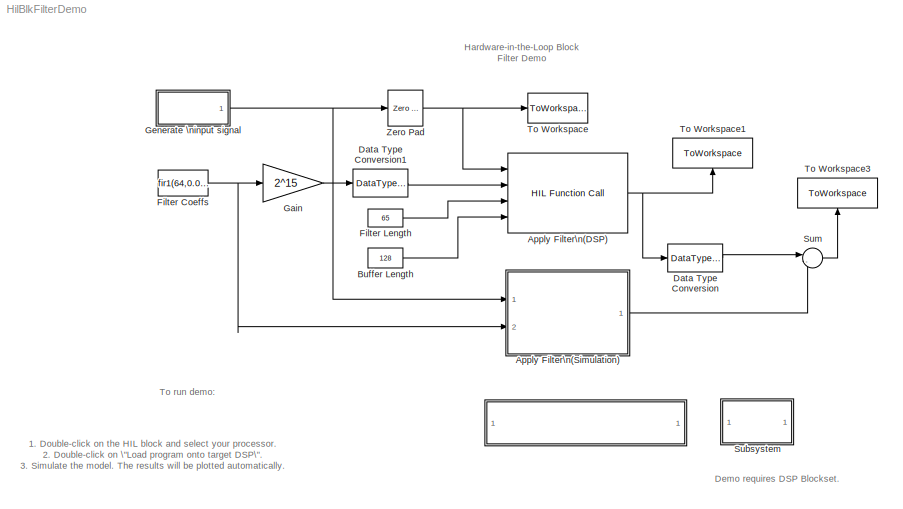
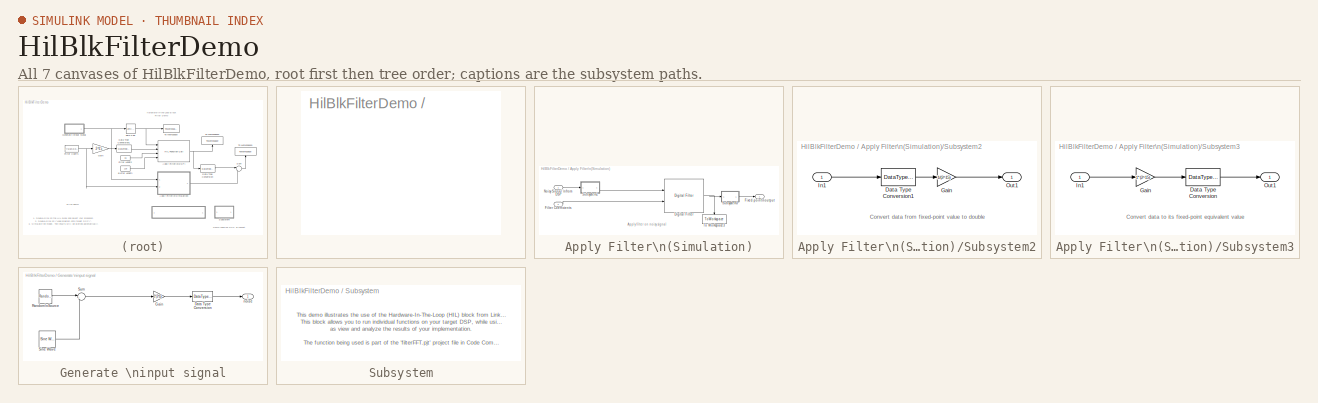
[diagram: thumbnail index - all 7 canvases of the model, root first then tree order]
MODEL HilBlkFilterDemo
KIND model
CONFIG StopFcn = HilBlkFilterDemo_script('viewResults')
BLOCK [SubSystem]  
  MaskDisplay = disp('Load Program onto target DSP')
  MaskIconFrame = on
  MaskIconOpaque = on
  MaskIconRotate = none
  MaskIconUnits = autoscale
  MinAlgLoopOccurrences = off
  OpenFcn = HilBlkFilterDemo_script('loadProg')
  Ports = []
  PropExecContextAcrossSSBoundary = on
  RTWSystemCode = Auto
  TreatAsAtomicUnit = off
BLOCK [Reference] Apply Filter\n(DSP)  REF=HilLib/HIL Function Call
  Ports = [4, 1]
  SourceBlock = HilLib/HIL Function Call
  SourceType = Hardware-in-the-Loop Function Call
  UserData = DataTag0
  UserDataPersistent = on
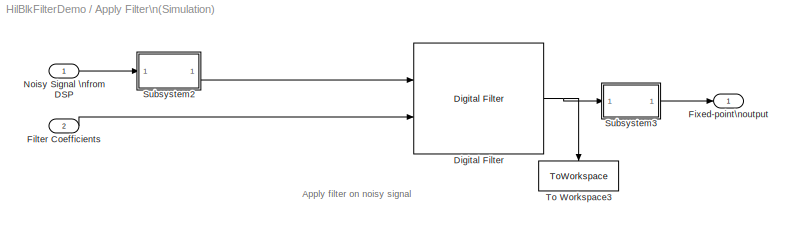
BLOCK [SubSystem] Apply Filter\n(Simulation)
  MaskDisplay = disp('filter')
  MaskIconFrame = on
  MaskIconOpaque = on
  MaskIconRotate = none
  MaskIconUnits = autoscale
  MinAlgLoopOccurrences = off
  Ports = [2, 1]
  PropExecContextAcrossSSBoundary = on
  RTWSystemCode = Auto
  TreatAsAtomicUnit = off
BLOCK [Reference] Apply Filter\n(Simulation)/Digital Filter  REF=dsparch4/Digital Filter
  AllPoleFiltStruct = Direct form
  BiQuadCoeffs = [1 0.3 0.4 1 0.1 0.2]
  CoeffSource = Input port(s)
  DenCoeffs = [1 0.1]
  FIRFiltStruct = Direct form
  FiltPerSampPopup = One filter per frame
  IC = 0
  ICden = 0
  ICnum = 0
  IIRFiltStruct = Direct form II transposed
  LatticeCoeffs = [0.2 0.4]
  NumCoeffs = [1 2]
  Ports = [2, 1]
  SourceBlock = dsparch4/Digital Filter
  SourceType = Digital Filter
  TypePopup = FIR (all zeros)
  accumFracLength = 30
  accumMode = Same as output
  accumWordLength = 32
  additionalParams = off
  allowOverrides = on
  denIgnore = on
  firstCoeffFracLength = 15
  firstCoeffMode = Same as input
  firstCoeffWordLength = 16
  memoryFracLength = 15
  memoryMode = Same as input
  memoryWordLength = 16
  outputFracLength = 15
  outputMode = Same as input
  outputWordLength = 16
  overflowMode = off
  prodOutputFracLength = 30
  prodOutputMode = Same as accumulator
  prodOutputWordLength = 32
  roundingMode = Floor
  secondCoeffFracLength = 15
  secondCoeffMode = Same as numerator
  secondCoeffWordLength = 16
  showAcc = off
  showCoeff = off
  showMem = off
  showMpy = off
  showOut = off
  thirdCoeffFracLength = 15
  thirdCoeffMode = Same as input
  thirdCoeffWordLength = 16
BLOCK [Inport] Apply Filter\n(Simulation)/Filter Coefficients
  IconDisplay = Port number
  LatchInput = off
  Port = 2
BLOCK [Outport] Apply Filter\n(Simulation)/Fixed-point\noutput
  BusOutputAsStruct = off
  IconDisplay = Port number
BLOCK [Inport] Apply Filter\n(Simulation)/Noisy Signal \nfrom DSP
  IconDisplay = Port number
  LatchInput = off
BLOCK [SubSystem] Apply Filter\n(Simulation)/Subsystem2
  MaskDisplay = disp(sprintf('Scale'))\n
  MaskIconFrame = on
  MaskIconOpaque = on
  MaskIconRotate = none
  MaskIconUnits = autoscale
  MinAlgLoopOccurrences = off
  Ports = [1, 1]
  PropExecContextAcrossSSBoundary = on
  RTWSystemCode = Auto
  TreatAsAtomicUnit = off
BLOCK [DataTypeConversion] Apply Filter\n(Simulation)/Subsystem2/Data Type Conversion1
  OutDataTypeMode = double
BLOCK [Gain] Apply Filter\n(Simulation)/Subsystem2/Gain
  Gain = 1/(2^15)
BLOCK [Inport] Apply Filter\n(Simulation)/Subsystem2/In1
  IconDisplay = Port number
  LatchInput = off
BLOCK [Outport] Apply Filter\n(Simulation)/Subsystem2/Out1
  BusOutputAsStruct = off
  IconDisplay = Port number
BLOCK [SubSystem] Apply Filter\n(Simulation)/Subsystem3
  MaskDisplay = disp(sprintf('Scale'))\n
  MaskIconFrame = on
  MaskIconOpaque = on
  MaskIconRotate = none
  MaskIconUnits = autoscale
  MinAlgLoopOccurrences = off
  Ports = [1, 1]
  PropExecContextAcrossSSBoundary = on
  RTWSystemCode = Auto
  TreatAsAtomicUnit = off
BLOCK [DataTypeConversion] Apply Filter\n(Simulation)/Subsystem3/Data Type Conversion
  OutDataTypeMode = double
BLOCK [Gain] Apply Filter\n(Simulation)/Subsystem3/Gain
  Gain = 1*(2^15)
BLOCK [Inport] Apply Filter\n(Simulation)/Subsystem3/In1
  IconDisplay = Port number
  LatchInput = off
BLOCK [Outport] Apply Filter\n(Simulation)/Subsystem3/Out1
  BusOutputAsStruct = off
  IconDisplay = Port number
BLOCK [ToWorkspace] Apply Filter\n(Simulation)/To Workspace3
  MaxDataPoints = inf
  SampleTime = -1
  SaveFormat = Array
  VariableName = filterOutputSim
BLOCK [Constant] Buffer Length
  OutDataTypeMode = uint16
  SampleTime = 128/8000
  Value = 128
BLOCK [DataTypeConversion] Data Type Conversion
  OutDataTypeMode = double
BLOCK [DataTypeConversion] Data Type Conversion1
  OutDataTypeMode = int16
BLOCK [Constant] Filter Coeffs
  OutDataTypeMode = double
  SampleTime = 128/8000
  Value = fir1(64,0.076)
BLOCK [Constant] Filter Length
  OutDataTypeMode = uint16
  SampleTime = 128/8000
  Value = 65
BLOCK [Gain] Gain
  Gain = 2^15
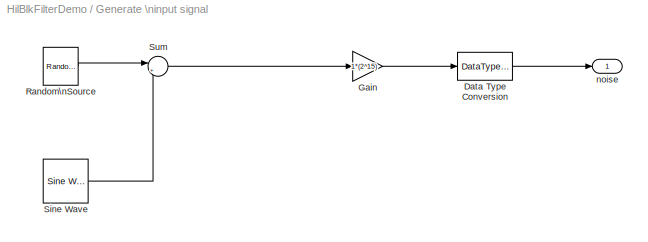
BLOCK [SubSystem] Generate \ninput signal
  MinAlgLoopOccurrences = off
  Ports = [0, 1]
  PropExecContextAcrossSSBoundary = on
  RTWSystemCode = Auto
  TreatAsAtomicUnit = off
BLOCK [DataTypeConversion] Generate \ninput signal/Data Type Conversion
  OutDataTypeMode = int16
BLOCK [Gain] Generate \ninput signal/Gain
  Gain = 1*(2^15)
BLOCK [Reference] Generate \ninput signal/Random\nSource  REF=dspsrcs4/Random\nSource
  CltLength = 12
  DataType = Single
  Diagnostics = AllowInheritedTsInSrc
  Inherit = off
  Max = 0.2
  Mean = 0
  Min = -0.2
  NormMethod = Ziggurat
  OutComplex = Real
  Ports = [0, 1]
  RepMode = Not repeatable
  SampFrame = 128
  SampMode = Discrete
  SampTime = 1/8000
  Seed = 1
  SourceBlock = dspsrcs4/Random\nSource
  SourceType = Random Source
  SrcType = Uniform
  UserData = DataTag1
  UserDataPersistent = on
  Var = 1
BLOCK [Reference] Generate \ninput signal/Sine Wave  REF=dspsrcs4/Sine Wave
  Amplitude = 0.7
  CompMethod = Trigonometric fcn
  Frequency = 200
  OutComplex = Real
  Phase = 0
  Ports = [0, 1]
  ResetState = Restart at time zero
  SampleMode = Discrete
  SampleTime = 1/8000
  SamplesPerFrame = 128
  SourceBlock = dspsrcs4/Sine Wave
  SourceType = Sine Wave
  TableSize = Speed
  additionalParams = on
  allowOverrides = on
  dataType = single
  fracBitsMode = Best precision
  numFracBits = 15
  udDataType = sfix(16)
  wordLen = 16
BLOCK [Sum] Generate \ninput signal/Sum
  IconShape = round
  Inputs = |++
  Ports = [2, 1]
BLOCK [Outport] Generate \ninput signal/noise
  BusOutputAsStruct = off
  IconDisplay = Port number
BLOCK [SubSystem] Subsystem
  MaskDisplay = disp('Info')
  MaskIconFrame = on
  MaskIconOpaque = on
  MaskIconRotate = none
  MaskIconUnits = autoscale
  MinAlgLoopOccurrences = off
  Ports = []
  PropExecContextAcrossSSBoundary = on
  RTWSystemCode = Auto
  ShowPortLabels = off
  TreatAsAtomicUnit = off
BLOCK [Sum] Sum
  IconShape = round
  InputSameDT = off
  Inputs = |-+
  OutDataTypeMode = Inherit via internal rule
  Ports = [2, 1]
BLOCK [ToWorkspace] To Workspace
  MaxDataPoints = inf
  SampleTime = -1
  SaveFormat = Array
  VariableName = filterInput
BLOCK [ToWorkspace] To Workspace1
  MaxDataPoints = inf
  SampleTime = -1
  SaveFormat = Array
  VariableName = filterOutput
BLOCK [ToWorkspace] To Workspace3
  MaxDataPoints = inf
  SampleTime = -1
  SaveFormat = Array
  VariableName = filterOutputDiff
BLOCK [Reference] Zero Pad  REF=dspsigops/Zero Pad
  Ports = [1, 1]
  SourceBlock = dspsigops/Zero Pad
  SourceType = Zero Pad
  numOutCols = 1
  numOutRows = 128+65
  padNumOutColsSpecMethod = User-specified
  padNumOutRowsSpecMethod = User-specified
  padSigAt = Beginning
  trunc_flag = None
  zpadAlong = Columns
ANNOTATION (root): Demo requires DSP Blockset.
ANNOTATION (root): Hardware-in-the-Loop Block \nFilter Demo
ANNOTATION (root): To run demo:
ANNOTATION (root): \n\n1. Double-click on the HIL block and select your processor.\n2. Double-click on \"Load program onto target DSP\".\n3. Simulate the model. The results will be plotted automatically.\n
ANNOTATION Apply Filter\n(Simulation): Apply filter on noisy signal
ANNOTATION Apply Filter\n(Simulation)/Subsystem2: Convert data from fixed-point value to double
ANNOTATION Apply Filter\n(Simulation)/Subsystem3: Convert data to its fixed-point equivalent value
ANNOTATION Subsystem: This demo illustrates the use of the Hardware-In-The-Loop (HIL) block from Link for Code Composer Studio. \nThis block allows you to run individual functions on your target DSP, while using Simulink to provide inputs as well \nas view and analyze the results of your implementation. \n\nThe function being used is part of the 'filterFFT.pjt' project file in Code Composer Studio. \n\nThe function is ...<+1241ch>
NET Apply Filter\n(DSP):1 -> Data Type Conversion:1, To Workspace1:1
NET Apply Filter\n(Simulation)/Digital Filter:1 -> Apply Filter\n(Simulation)/Subsystem3:1, Apply Filter\n(Simulation)/To Workspace3:1
LINE Apply Filter\n(Simulation)/Filter Coefficients:1 -> Apply Filter\n(Simulation)/Digital Filter:2
LINE Apply Filter\n(Simulation)/Noisy Signal \nfrom DSP:1 -> Apply Filter\n(Simulation)/Subsystem2:1
LINE Apply Filter\n(Simulation)/Subsystem2/Data Type Conversion1:1 -> Apply Filter\n(Simulation)/Subsystem2/Gain:1
LINE Apply Filter\n(Simulation)/Subsystem2/Gain:1 -> Apply Filter\n(Simulation)/Subsystem2/Out1:1
LINE Apply Filter\n(Simulation)/Subsystem2/In1:1 -> Apply Filter\n(Simulation)/Subsystem2/Data Type Conversion1:1
LINE Apply Filter\n(Simulation)/Subsystem2:1 -> Apply Filter\n(Simulation)/Digital Filter:1
LINE Apply Filter\n(Simulation)/Subsystem3/Data Type Conversion:1 -> Apply Filter\n(Simulation)/Subsystem3/Out1:1
LINE Apply Filter\n(Simulation)/Subsystem3/Gain:1 -> Apply Filter\n(Simulation)/Subsystem3/Data Type Conversion:1
LINE Apply Filter\n(Simulation)/Subsystem3/In1:1 -> Apply Filter\n(Simulation)/Subsystem3/Gain:1
LINE Apply Filter\n(Simulation)/Subsystem3:1 -> Apply Filter\n(Simulation)/Fixed-point\noutput:1
LINE Apply Filter\n(Simulation):1 -> Sum:2
LINE Buffer Length:1 -> Apply Filter\n(DSP):4
LINE Data Type Conversion1:1 -> Apply Filter\n(DSP):2
LINE Data Type Conversion:1 -> Sum:1
NET Filter Coeffs:1 -> Apply Filter\n(Simulation):2, Gain:1
LINE Filter Length:1 -> Apply Filter\n(DSP):3
LINE Gain:1 -> Data Type Conversion1:1
LINE Generate \ninput signal/Data Type Conversion:1 -> Generate \ninput signal/noise:1
LINE Generate \ninput signal/Gain:1 -> Generate \ninput signal/Data Type Conversion:1
LINE Generate \ninput signal/Random\nSource:1 -> Generate \ninput signal/Sum:1
LINE Generate \ninput signal/Sine Wave:1 -> Generate \ninput signal/Sum:2
LINE Generate \ninput signal/Sum:1 -> Generate \ninput signal/Gain:1
NET Generate \ninput signal:1 -> Apply Filter\n(Simulation):1, Zero Pad:1
LINE Sum:1 -> To Workspace3:1
NET Zero Pad:1 -> Apply Filter\n(DSP):1, To Workspace:1
note: NET lines group one-source signal fan-out (src -> all destinations, sorted); 1:1 wires keep LINE
